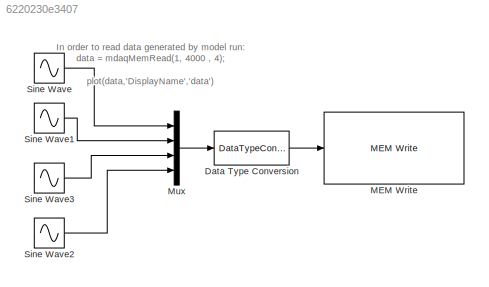
MODEL slx_6220230e3407
KIND model
BLOCK [DataTypeConversion] Data Type Conversion
  RndMeth = Floor
  SaturateOnIntegerOverflow = off
BLOCK [Reference] MEM Write    REF=microdaq_lib/Data IO/MEM Write    (lib defined in slx_912f07ce28e3)
  Overwrite = off
  Ports = [1]
  SampleTime = -1
  SourceBlock = microdaq_lib/Data IO/MEM Write
  SourceType = Write Memory block
  pArraySize = 4000
  pMemAddr = 1
  pVectorSize = 4
BLOCK [Mux] Mux
  DisplayOption = bar
  Ports = [4, 1]
BLOCK [Sin] Sine Wave
  Ports = [0, 1]
  SampleTime = 0
BLOCK [Sin] Sine Wave1
  Amplitude = 2
  Ports = [0, 1]
  SampleTime = 0
BLOCK [Sin] Sine Wave2
  Amplitude = 4
  Ports = [0, 1]
  SampleTime = 0
BLOCK [Sin] Sine Wave3
  Amplitude = 3
  Ports = [0, 1]
  SampleTime = 0
ANNOTATION (root): In order to read data generated by model run: data = mdaqMemRead(1, 4000 , 4); plot(data,'DisplayName','data')
LINE Data Type Conversion:1 -> MEM Write  :1
LINE Mux:1 -> Data Type Conversion:1
LINE Sine Wave1:1 -> Mux:2
LINE Sine Wave2:1 -> Mux:4
LINE Sine Wave3:1 -> Mux:3
LINE Sine Wave:1 -> Mux:1
